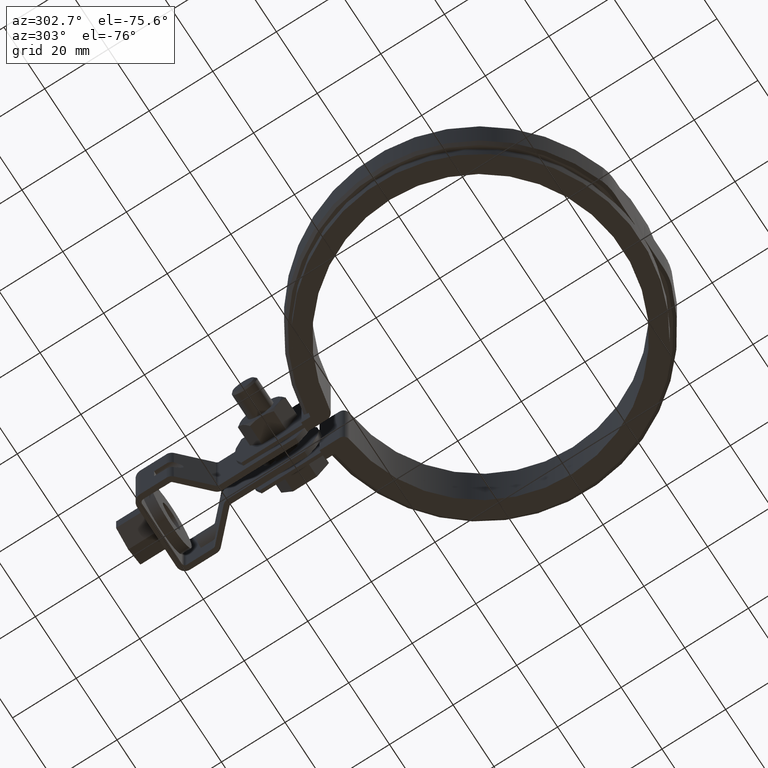
[diagram: clean part render]
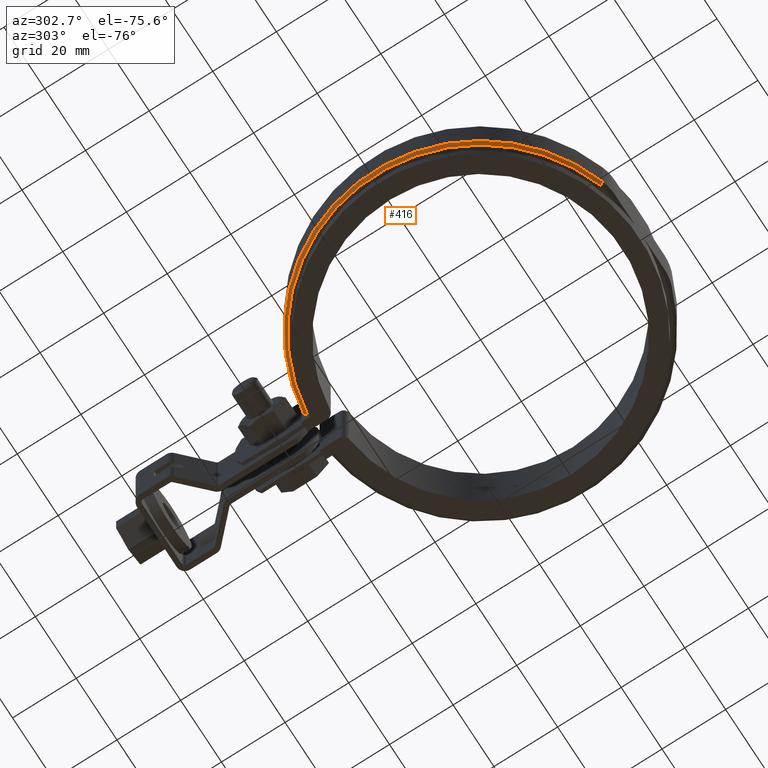
[diagram: same view with one face highlighted and labeled with its STEP entity id]
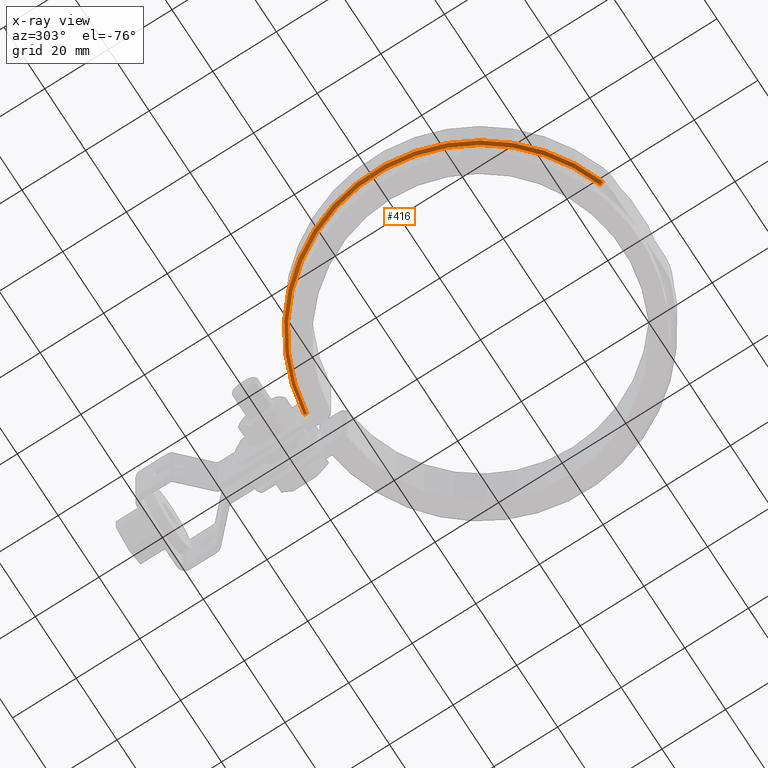
[diagram: x-ray of the same camera — body ghosted, the highlighted face saturated]
A machine part, auxiliary view. The second image highlights one B-rep face of the part: STEP entity #416.
The next image is the same camera in x-ray: the body ghosted, the highlighted face saturated — about 0% of this face is hidden behind the body in this view.
In plain terms, the highlighted conical surface has half-angle 45 deg.
Its self-contained STEP definition (entity closure, byte-faithful):
#416 = ADVANCED_FACE( '', ( #740 ), #741, .T. );
#740 = FACE_OUTER_BOUND( '', #1752, .T. );
#741 = CONICAL_SURFACE( '', #1753, 52.0500000000000, 0.785398163397452 );
#1752 = EDGE_LOOP( '', ( #3411, #3412, #3413, #3414 ) );
#1753 = AXIS2_PLACEMENT_3D( '', #3415, #3416, #3417 );
#3411 = ORIENTED_EDGE( '', *, *, #4621, .F. );
#3412 = ORIENTED_EDGE( '', *, *, #4636, .F. );
#3413 = ORIENTED_EDGE( '', *, *, #4658, .F. );
#3414 = ORIENTED_EDGE( '', *, *, #4634, .F. );
#3415 = CARTESIAN_POINT( '', ( 0.000000000000000, -1.38777878078145E-014, -7.50000000000000 ) );
#3416 = DIRECTION( '', ( 0.000000000000000, 0.000000000000000, 1.00000000000000 ) );
#3417 = DIRECTION( '', ( 1.00000000000000, 0.000000000000000, 0.000000000000000 ) );
#4621 = EDGE_CURVE( '', #5405, #5407, #5408, .T. );
#4634 = EDGE_CURVE( '', #5407, #5424, #5428, .T. );
#4636 = EDGE_CURVE( '', #5429, #5405, #5431, .F. );
#4658 = EDGE_CURVE( '', #5424, #5429, #5460, .T. );
#5405 = VERTEX_POINT( '', #8204 );
#5407 = VERTEX_POINT( '', #8207 );
#5408 = B_SPLINE_CURVE_WITH_KNOTS( '', 3, ( #8208, #8209, #8210, #8211 ), .UNSPECIFIED., .F., .F., ( 4, 4 ), ( 0.000000000000000, 0.00141906111018388 ), .UNSPECIFIED. );
#5424 = VERTEX_POINT( '', #8237 );
#5428 = CIRCLE( '', #8242, 52.0500000000000 );
#5429 = VERTEX_POINT( '', #8243 );
#5431 = CIRCLE( '', #8245, 51.0500000000000 );
#5460 = LINE( '', #8287, #8288 );
#8204 = CARTESIAN_POINT( '', ( -6.00000000000000, 50.6961783569531, -8.50000000000000 ) );
#8207 = CARTESIAN_POINT( '', ( -6.00000000000000, 51.7030221553828, -7.50000000000000 ) );
#8208 = CARTESIAN_POINT( '', ( -6.00000000000000, 50.6961783569531, -8.50000000000000 ) );
#8209 = CARTESIAN_POINT( '', ( -6.00000000000000, 51.0318153765527, -8.16668924174697 ) );
#8210 = CARTESIAN_POINT( '', ( -6.00000000000000, 51.3674295438524, -7.83335547030038 ) );
#8211 = CARTESIAN_POINT( '', ( -6.00000000000000, 51.7030221553827, -7.50000000000000 ) );
#8237 = CARTESIAN_POINT( '', ( -16.8700026854753, -49.2402834008097, -7.50000000000000 ) );
#8242 = AXIS2_PLACEMENT_3D( '', #9315, #9316, #9317 );
#8243 = CARTESIAN_POINT( '', ( -16.5458912025651, -48.2942645074224, -8.50000000000000 ) );
#8245 = AXIS2_PLACEMENT_3D( '', #9321, #9322, #9323 );
#8287 = CARTESIAN_POINT( '', ( -16.8700026854753, -49.2402834008097, -7.50000000000000 ) );
#8288 = VECTOR( '', #9361, 1000.00000000000 );
#9315 = CARTESIAN_POINT( '', ( 0.000000000000000, -1.38777878078145E-014, -7.50000000000000 ) );
#9316 = DIRECTION( '', ( 0.000000000000000, 0.000000000000000, 1.00000000000000 ) );
#9317 = DIRECTION( '', ( 1.00000000000000, 0.000000000000000, 0.000000000000000 ) );
#9321 = CARTESIAN_POINT( '', ( 0.000000000000000, -1.38777878078145E-014, -8.50000000000000 ) );
#9322 = DIRECTION( '', ( 0.000000000000000, 0.000000000000000, 1.00000000000000 ) );
#9323 = DIRECTION( '', ( 1.00000000000000, 0.000000000000000, 0.000000000000000 ) );
#9361 = DIRECTION( '', ( 0.229181427426222, 0.668936374644766, -0.707106781186545 ) );